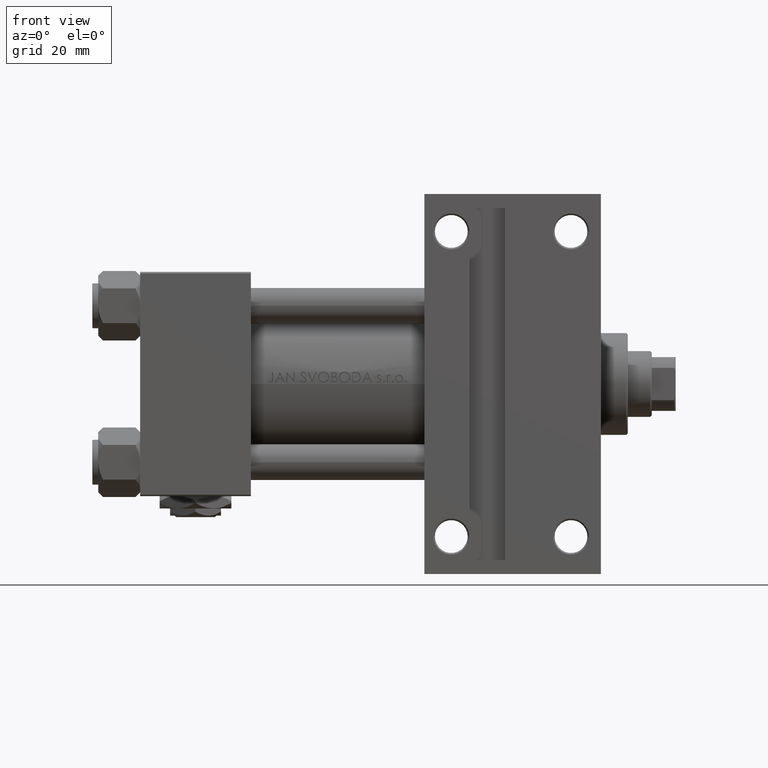
[diagram: clean part render]
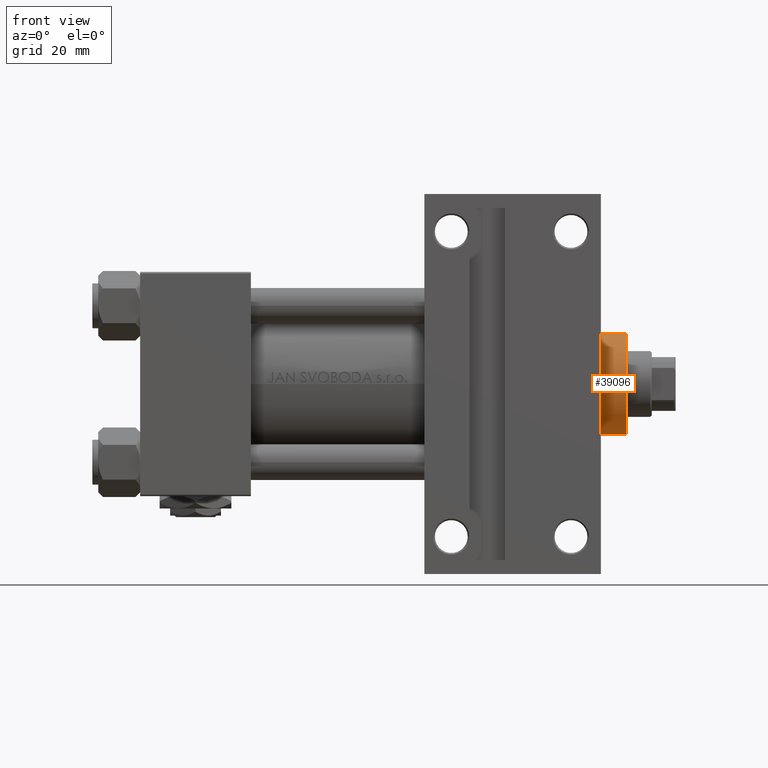
[diagram: same view with one face highlighted and labeled with its STEP entity id]
A machine part, front view. The second image highlights one B-rep face of the part: STEP entity #39096.
In plain terms, the highlighted cylindrical surface (partial cylindrical patch) has radius 17 mm, axis along (-1, 0, 0).
Its self-contained STEP definition (entity closure, byte-faithful):
#979 = CARTESIAN_POINT ( 'NONE',  ( -17.00000000000000000, 0.000000000000000000, 28.69999999999999929 ) ) ;
#995 = CARTESIAN_POINT ( 'NONE',  ( -17.00000000000000000, 0.000000000000000000, 37.19999999999999574 ) ) ;
#1266 = CIRCLE ( 'NONE', #32511, 17.00000000000000000 ) ;
#1344 = VERTEX_POINT ( 'NONE', #39406 ) ;
#2387 = VERTEX_POINT ( 'NONE', #27443 ) ;
#4111 = DIRECTION ( 'NONE',  ( -0.000000000000000000, -0.000000000000000000, -1.000000000000000000 ) ) ;
#5009 = AXIS2_PLACEMENT_3D ( 'NONE', #24805, #28069, #12994 ) ;
#5055 = EDGE_CURVE ( 'NONE', #2387, #1344, #15924, .T. ) ;
#10046 = VERTEX_POINT ( 'NONE', #979 ) ;
#10599 = ORIENTED_EDGE ( 'NONE', *, *, #47637, .T. ) ;
#11229 = CARTESIAN_POINT ( 'NONE',  ( 0.000000000000000000, 0.000000000000000000, 37.19999999999999574 ) ) ;
#11894 = FACE_OUTER_BOUND ( 'NONE', #21640, .T. ) ;
#12994 = DIRECTION ( 'NONE',  ( 1.000000000000000000, 0.000000000000000000, 0.000000000000000000 ) ) ;
#13803 = DIRECTION ( 'NONE',  ( 1.000000000000000000, 0.000000000000000000, 0.000000000000000000 ) ) ;
#14647 = CIRCLE ( 'NONE', #5009, 17.00000000000000000 ) ;
#15386 = CYLINDRICAL_SURFACE ( 'NONE', #16335, 17.00000000000000000 ) ;
#15924 = LINE ( 'NONE', #19193, #37388 ) ;
#16335 = AXIS2_PLACEMENT_3D ( 'NONE', #42542, #4111, #46317 ) ;
#17492 = EDGE_CURVE ( 'NONE', #19681, #10046, #30326, .T. ) ;
#19193 = CARTESIAN_POINT ( 'NONE',  ( 17.00000000000000000, 2.081899558550500280E-15, 37.69999999999999574 ) ) ;
#19681 = VERTEX_POINT ( 'NONE', #995 ) ;
#20348 = VECTOR ( 'NONE', #34843, 1000.000000000000000 ) ;
#21640 = EDGE_LOOP ( 'NONE', ( #10599, #33788, #23400, #24043 ) ) ;
#23400 = ORIENTED_EDGE ( 'NONE', *, *, #33042, .T. ) ;
#24043 = ORIENTED_EDGE ( 'NONE', *, *, #17492, .F. ) ;
#24805 = CARTESIAN_POINT ( 'NONE',  ( 0.000000000000000000, 0.000000000000000000, 28.69999999999999929 ) ) ;
#26551 = DIRECTION ( 'NONE',  ( 0.000000000000000000, 0.000000000000000000, -1.000000000000000000 ) ) ;
#27443 = CARTESIAN_POINT ( 'NONE',  ( 17.00000000000000000, 2.081899558550500280E-15, 37.19999999999999574 ) ) ;
#28069 = DIRECTION ( 'NONE',  ( 0.000000000000000000, 0.000000000000000000, 1.000000000000000000 ) ) ;
#30326 = LINE ( 'NONE', #37866, #20348 ) ;
#32511 = AXIS2_PLACEMENT_3D ( 'NONE', #11229, #26551, #13803 ) ;
#33042 = EDGE_CURVE ( 'NONE', #1344, #10046, #14647, .T. ) ;
#33788 = ORIENTED_EDGE ( 'NONE', *, *, #5055, .T. ) ;
#34843 = DIRECTION ( 'NONE',  ( -0.000000000000000000, -0.000000000000000000, -1.000000000000000000 ) ) ;
#37388 = VECTOR ( 'NONE', #45599, 1000.000000000000000 ) ;
#37866 = CARTESIAN_POINT ( 'NONE',  ( -17.00000000000000000, 0.000000000000000000, 37.69999999999999574 ) ) ;
#39096 = ADVANCED_FACE ( 'NONE', ( #11894 ), #15386, .T. ) ;
#39406 = CARTESIAN_POINT ( 'NONE',  ( 17.00000000000000000, 2.081899558550500280E-15, 28.69999999999999929 ) ) ;
#42542 = CARTESIAN_POINT ( 'NONE',  ( 0.000000000000000000, 0.000000000000000000, 37.69999999999999574 ) ) ;
#45599 = DIRECTION ( 'NONE',  ( -0.000000000000000000, -0.000000000000000000, -1.000000000000000000 ) ) ;
#46317 = DIRECTION ( 'NONE',  ( -1.000000000000000000, 0.000000000000000000, 0.000000000000000000 ) ) ;
#47637 = EDGE_CURVE ( 'NONE', #19681, #2387, #1266, .T. ) ;